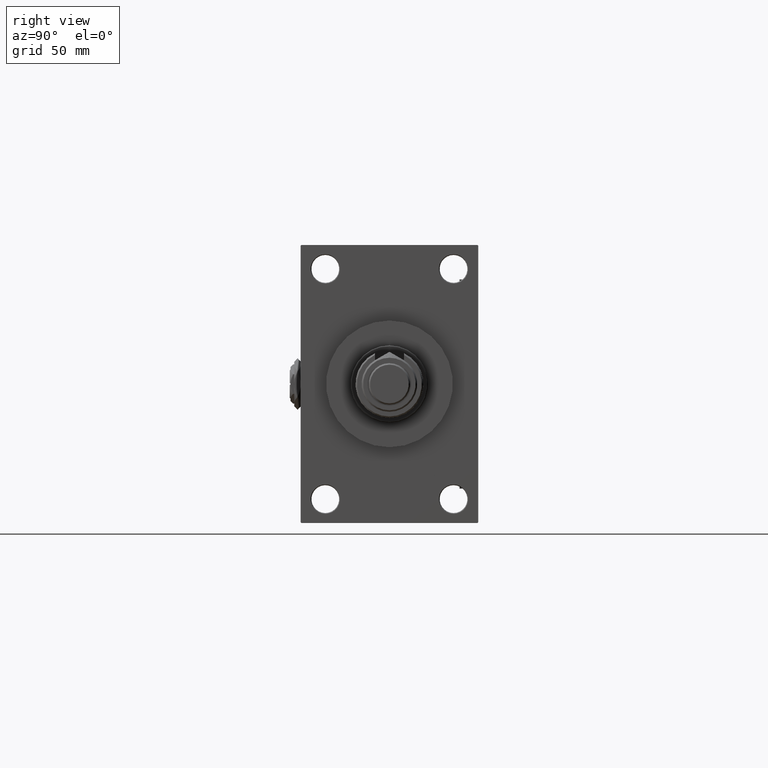
[diagram: clean part render]
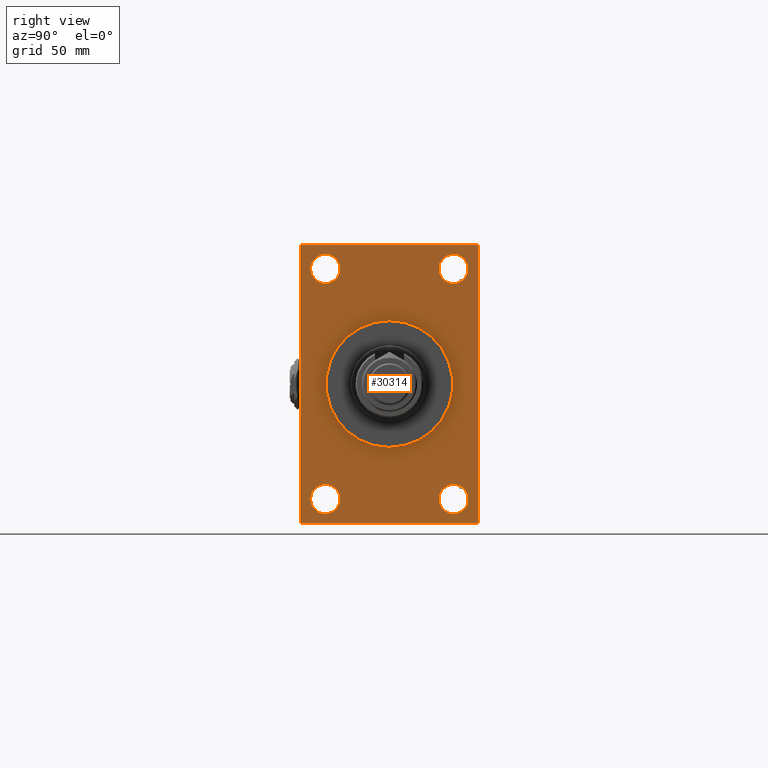
[diagram: same view with one face highlighted and labeled with its STEP entity id]
A machine part, right view. The second image highlights one B-rep face of the part: STEP entity #30314.
In plain terms, the highlighted planar face has unit normal (-1, 0, 0).
Its self-contained STEP definition (entity closure, byte-faithful):
#57 = DIRECTION ( 'NONE',  ( 0.000000000000000000, 0.000000000000000000, -1.000000000000000000 ) ) ;
#67 = DIRECTION ( 'NONE',  ( 0.000000000000000000, 0.000000000000000000, -1.000000000000000000 ) ) ;
#500 = DIRECTION ( 'NONE',  ( 0.000000000000000000, -1.000000000000000000, -1.206764157201257045E-16 ) ) ;
#544 = EDGE_CURVE ( 'NONE', #32998, #51077, #35915, .T. ) ;
#601 = FACE_BOUND ( 'NONE', #46060, .T. ) ;
#1296 = LINE ( 'NONE', #51232, #49151 ) ;
#1650 = VECTOR ( 'NONE', #500, 1000.000000000000000 ) ;
#1802 = VECTOR ( 'NONE', #38207, 1000.000000000000000 ) ;
#1873 = EDGE_CURVE ( 'NONE', #14935, #14039, #38608, .T. ) ;
#1993 = DIRECTION ( 'NONE',  ( 0.000000000000000000, 0.000000000000000000, 1.000000000000000000 ) ) ;
#2077 = EDGE_CURVE ( 'NONE', #46740, #2218, #1296, .T. ) ;
#2218 = VERTEX_POINT ( 'NONE', #18934 ) ;
#2622 = ORIENTED_EDGE ( 'NONE', *, *, #27894, .F. ) ;
#2745 = LINE ( 'NONE', #39973, #5122 ) ;
#2748 = VERTEX_POINT ( 'NONE', #43084 ) ;
#2966 = EDGE_CURVE ( 'NONE', #24859, #37622, #26705, .T. ) ;
#3040 = CARTESIAN_POINT ( 'NONE',  ( 239.0000000000000000, -41.49999999999999289, 65.00000000000000000 ) ) ;
#4587 = LINE ( 'NONE', #21404, #1802 ) ;
#4611 = EDGE_CURVE ( 'NONE', #6654, #2748, #36806, .T. ) ;
#4820 = CARTESIAN_POINT ( 'NONE',  ( 239.0000000000000000, 41.50000000000000711, -64.99999999999998579 ) ) ;
#5122 = VECTOR ( 'NONE', #36109, 1000.000000000000000 ) ;
#5723 = VERTEX_POINT ( 'NONE', #4820 ) ;
#5734 = AXIS2_PLACEMENT_3D ( 'NONE', #33641, #38583, #17381 ) ;
#6320 = EDGE_LOOP ( 'NONE', ( #49970, #53575 ) ) ;
#6654 = VERTEX_POINT ( 'NONE', #21928 ) ;
#6770 = DIRECTION ( 'NONE',  ( -1.000000000000000000, 0.000000000000000000, -0.000000000000000000 ) ) ;
#6883 = DIRECTION ( 'NONE',  ( 0.000000000000000000, 0.000000000000000000, 1.000000000000000000 ) ) ;
#7795 = FACE_BOUND ( 'NONE', #54158, .T. ) ;
#8511 = DIRECTION ( 'NONE',  ( -1.000000000000000000, 0.000000000000000000, -0.000000000000000000 ) ) ;
#8548 = EDGE_CURVE ( 'NONE', #10278, #39652, #4587, .T. ) ;
#8628 = DIRECTION ( 'NONE',  ( -1.000000000000000000, 0.000000000000000000, -0.000000000000000000 ) ) ;
#8683 = AXIS2_PLACEMENT_3D ( 'NONE', #41846, #8511, #25335 ) ;
#8871 = VECTOR ( 'NONE', #22295, 1000.000000000000000 ) ;
#8923 = EDGE_CURVE ( 'NONE', #14039, #14935, #39660, .T. ) ;
#9505 = VERTEX_POINT ( 'NONE', #38479 ) ;
#9609 = CARTESIAN_POINT ( 'NONE',  ( 239.0000000000000000, 41.50000000000000711, 84.00000000000001421 ) ) ;
#10165 = LINE ( 'NONE', #10712, #27472 ) ;
#10278 = VERTEX_POINT ( 'NONE', #25879 ) ;
#10712 = CARTESIAN_POINT ( 'NONE',  ( 239.0000000000000000, 57.00000000000002842, 89.99999999999998579 ) ) ;
#11171 = EDGE_CURVE ( 'NONE', #20734, #9505, #29563, .T. ) ;
#11796 = EDGE_CURVE ( 'NONE', #50867, #26872, #15238, .T. ) ;
#12200 = CARTESIAN_POINT ( 'NONE',  ( 239.0000000000000000, 0.000000000000000000, 0.000000000000000000 ) ) ;
#12755 = FACE_BOUND ( 'NONE', #6320, .T. ) ;
#13026 = DIRECTION ( 'NONE',  ( -0.000000000000000000, 0.000000000000000000, 1.000000000000000000 ) ) ;
#13727 = DIRECTION ( 'NONE',  ( 0.000000000000000000, -1.000000000000000000, -1.206764157201257291E-16 ) ) ;
#14039 = VERTEX_POINT ( 'NONE', #36422 ) ;
#14136 = VECTOR ( 'NONE', #31107, 1000.000000000000000 ) ;
#14141 = ORIENTED_EDGE ( 'NONE', *, *, #4611, .F. ) ;
#14212 = CIRCLE ( 'NONE', #44994, 9.500000000000008882 ) ;
#14278 = CARTESIAN_POINT ( 'NONE',  ( 239.0000000000000000, 57.49999999999997868, -90.00000000000000000 ) ) ;
#14303 = LINE ( 'NONE', #43780, #14136 ) ;
#14305 = DIRECTION ( 'NONE',  ( 0.000000000000000000, -0.7071067811865474617, 0.7071067811865474617 ) ) ;
#14420 = CARTESIAN_POINT ( 'NONE',  ( 239.0000000000000000, 41.50000000000000711, -84.00000000000000000 ) ) ;
#14832 = VERTEX_POINT ( 'NONE', #14420 ) ;
#14842 = ORIENTED_EDGE ( 'NONE', *, *, #48914, .T. ) ;
#14935 = VERTEX_POINT ( 'NONE', #35085 ) ;
#15238 = CIRCLE ( 'NONE', #45167, 9.500000000000008882 ) ;
#15933 = DIRECTION ( 'NONE',  ( 0.000000000000000000, 0.000000000000000000, 1.000000000000000000 ) ) ;
#16336 = FACE_BOUND ( 'NONE', #17629, .T. ) ;
#16905 = FACE_BOUND ( 'NONE', #24619, .T. ) ;
#16910 = EDGE_LOOP ( 'NONE', ( #45369, #44227, #46237, #25644, #28683, #36066, #49586, #54349 ) ) ;
#17381 = DIRECTION ( 'NONE',  ( 0.000000000000000000, 0.000000000000000000, 1.000000000000000000 ) ) ;
#17629 = EDGE_LOOP ( 'NONE', ( #35467, #14842 ) ) ;
#18934 = CARTESIAN_POINT ( 'NONE',  ( 239.0000000000000000, -57.00000000000001421, 89.99999999999997158 ) ) ;
#19359 = DIRECTION ( 'NONE',  ( -1.000000000000000000, 0.000000000000000000, -0.000000000000000000 ) ) ;
#19662 = EDGE_CURVE ( 'NONE', #14832, #5723, #44648, .T. ) ;
#20734 = VERTEX_POINT ( 'NONE', #35400 ) ;
#21404 = CARTESIAN_POINT ( 'NONE',  ( 239.0000000000000000, 57.49999999999997158, 89.99999999999998579 ) ) ;
#21928 = CARTESIAN_POINT ( 'NONE',  ( 239.0000000000000000, 5.021051876504148963E-15, -41.00000000000000000 ) ) ;
#22295 = DIRECTION ( 'NONE',  ( -0.000000000000000000, -0.7071067811865328068, -0.7071067811865622277 ) ) ;
#22838 = LINE ( 'NONE', #39632, #8871 ) ;
#24619 = EDGE_LOOP ( 'NONE', ( #2622, #14141 ) ) ;
#24859 = VERTEX_POINT ( 'NONE', #52137 ) ;
#24902 = EDGE_CURVE ( 'NONE', #24859, #39652, #2745, .T. ) ;
#25207 = AXIS2_PLACEMENT_3D ( 'NONE', #38655, #35050, #34522 ) ;
#25335 = DIRECTION ( 'NONE',  ( 0.000000000000000000, 0.000000000000000000, 1.000000000000000000 ) ) ;
#25644 = ORIENTED_EDGE ( 'NONE', *, *, #24902, .T. ) ;
#25879 = CARTESIAN_POINT ( 'NONE',  ( 239.0000000000000000, 57.49999999999997158, 89.50000000000004263 ) ) ;
#26705 = LINE ( 'NONE', #14278, #1650 ) ;
#26872 = VERTEX_POINT ( 'NONE', #3040 ) ;
#27287 = CIRCLE ( 'NONE', #38683, 41.00000000000000000 ) ;
#27472 = VECTOR ( 'NONE', #14305, 1000.000000000000114 ) ;
#27726 = CIRCLE ( 'NONE', #5734, 9.500000000000008882 ) ;
#27839 = CARTESIAN_POINT ( 'NONE',  ( 239.0000000000000000, -41.49999999999999289, -74.49999999999998579 ) ) ;
#27894 = EDGE_CURVE ( 'NONE', #2748, #6654, #27287, .T. ) ;
#28683 = ORIENTED_EDGE ( 'NONE', *, *, #8548, .F. ) ;
#28728 = CARTESIAN_POINT ( 'NONE',  ( 239.0000000000000000, -57.50000000000002132, 89.99999999999997158 ) ) ;
#29303 = DIRECTION ( 'NONE',  ( 1.000000000000000000, 0.000000000000000000, 0.000000000000000000 ) ) ;
#29353 = CARTESIAN_POINT ( 'NONE',  ( 239.0000000000000000, 0.000000000000000000, 0.000000000000000000 ) ) ;
#29563 = LINE ( 'NONE', #28728, #32683 ) ;
#29875 = EDGE_CURVE ( 'NONE', #9505, #37622, #14303, .T. ) ;
#30314 = ADVANCED_FACE ( 'NONE', ( #601, #12755, #16336, #7795, #16905, #33963 ), #54098, .F. ) ;
#30966 = AXIS2_PLACEMENT_3D ( 'NONE', #50400, #53974, #15933 ) ;
#31107 = DIRECTION ( 'NONE',  ( 0.000000000000000000, 0.7071067811865573427, -0.7071067811865378028 ) ) ;
#31411 = EDGE_CURVE ( 'NONE', #26872, #50867, #14212, .T. ) ;
#32017 = EDGE_CURVE ( 'NONE', #2218, #20734, #22838, .T. ) ;
#32371 = CARTESIAN_POINT ( 'NONE',  ( 239.0000000000000000, -41.49999999999999289, 74.50000000000001421 ) ) ;
#32403 = AXIS2_PLACEMENT_3D ( 'NONE', #46103, #29303, #67 ) ;
#32683 = VECTOR ( 'NONE', #57, 1000.000000000000000 ) ;
#32869 = ORIENTED_EDGE ( 'NONE', *, *, #31411, .T. ) ;
#32998 = VERTEX_POINT ( 'NONE', #46578 ) ;
#33641 = CARTESIAN_POINT ( 'NONE',  ( 239.0000000000000000, 41.50000000000000711, -74.50000000000000000 ) ) ;
#33963 = FACE_OUTER_BOUND ( 'NONE', #16910, .T. ) ;
#34393 = AXIS2_PLACEMENT_3D ( 'NONE', #27839, #44628, #6883 ) ;
#34522 = DIRECTION ( 'NONE',  ( 0.000000000000000000, 0.000000000000000000, 1.000000000000000000 ) ) ;
#35050 = DIRECTION ( 'NONE',  ( -1.000000000000000000, 0.000000000000000000, -0.000000000000000000 ) ) ;
#35085 = CARTESIAN_POINT ( 'NONE',  ( 239.0000000000000000, -41.49999999999999289, -83.99999999999998579 ) ) ;
#35288 = AXIS2_PLACEMENT_3D ( 'NONE', #12200, #8628, #13026 ) ;
#35400 = CARTESIAN_POINT ( 'NONE',  ( 239.0000000000000000, -57.50000000000002132, 89.49999999999994316 ) ) ;
#35467 = ORIENTED_EDGE ( 'NONE', *, *, #19662, .T. ) ;
#35717 = ORIENTED_EDGE ( 'NONE', *, *, #37788, .T. ) ;
#35915 = CIRCLE ( 'NONE', #47353, 9.500000000000008882 ) ;
#36066 = ORIENTED_EDGE ( 'NONE', *, *, #36680, .T. ) ;
#36109 = DIRECTION ( 'NONE',  ( -0.000000000000000000, 0.7071067811865378028, 0.7071067811865573427 ) ) ;
#36249 = DIRECTION ( 'NONE',  ( 0.000000000000000000, 0.000000000000000000, 1.000000000000000000 ) ) ;
#36422 = CARTESIAN_POINT ( 'NONE',  ( 239.0000000000000000, -41.49999999999999289, -64.99999999999997158 ) ) ;
#36680 = EDGE_CURVE ( 'NONE', #10278, #46740, #10165, .T. ) ;
#36806 = CIRCLE ( 'NONE', #32403, 41.00000000000000000 ) ;
#37622 = VERTEX_POINT ( 'NONE', #53420 ) ;
#37788 = EDGE_CURVE ( 'NONE', #51077, #32998, #51205, .T. ) ;
#38207 = DIRECTION ( 'NONE',  ( 0.000000000000000000, 3.854941057726238467E-17, -1.000000000000000000 ) ) ;
#38479 = CARTESIAN_POINT ( 'NONE',  ( 239.0000000000000000, -57.50000000000002132, -89.49999999999997158 ) ) ;
#38487 = CARTESIAN_POINT ( 'NONE',  ( 239.0000000000000000, 57.00000000000002842, 89.99999999999998579 ) ) ;
#38583 = DIRECTION ( 'NONE',  ( -1.000000000000000000, 0.000000000000000000, -0.000000000000000000 ) ) ;
#38608 = CIRCLE ( 'NONE', #8683, 9.500000000000008882 ) ;
#38655 = CARTESIAN_POINT ( 'NONE',  ( 239.0000000000000000, 41.50000000000000711, -74.50000000000000000 ) ) ;
#38683 = AXIS2_PLACEMENT_3D ( 'NONE', #29353, #45881, #45590 ) ;
#39632 = CARTESIAN_POINT ( 'NONE',  ( 239.0000000000000000, -57.50000000000002132, 89.49999999999994316 ) ) ;
#39652 = VERTEX_POINT ( 'NONE', #54529 ) ;
#39660 = CIRCLE ( 'NONE', #34393, 9.500000000000008882 ) ;
#39762 = CARTESIAN_POINT ( 'NONE',  ( 239.0000000000000000, -41.49999999999999289, 74.50000000000001421 ) ) ;
#39964 = ORIENTED_EDGE ( 'NONE', *, *, #544, .T. ) ;
#39973 = CARTESIAN_POINT ( 'NONE',  ( 239.0000000000000000, 57.49999999999997868, -89.49999999999995737 ) ) ;
#40469 = DIRECTION ( 'NONE',  ( 0.000000000000000000, 0.000000000000000000, 1.000000000000000000 ) ) ;
#41846 = CARTESIAN_POINT ( 'NONE',  ( 239.0000000000000000, -41.49999999999999289, -74.49999999999998579 ) ) ;
#43084 = CARTESIAN_POINT ( 'NONE',  ( 239.0000000000000000, 0.000000000000000000, 41.00000000000000000 ) ) ;
#43256 = ORIENTED_EDGE ( 'NONE', *, *, #11796, .T. ) ;
#43780 = CARTESIAN_POINT ( 'NONE',  ( 239.0000000000000000, -57.00000000000002132, -90.00000000000001421 ) ) ;
#44227 = ORIENTED_EDGE ( 'NONE', *, *, #29875, .T. ) ;
#44628 = DIRECTION ( 'NONE',  ( -1.000000000000000000, 0.000000000000000000, -0.000000000000000000 ) ) ;
#44648 = CIRCLE ( 'NONE', #25207, 9.500000000000008882 ) ;
#44870 = CARTESIAN_POINT ( 'NONE',  ( 239.0000000000000000, 41.50000000000000711, 74.50000000000001421 ) ) ;
#44994 = AXIS2_PLACEMENT_3D ( 'NONE', #39762, #19359, #1993 ) ;
#45167 = AXIS2_PLACEMENT_3D ( 'NONE', #32371, #6770, #36249 ) ;
#45369 = ORIENTED_EDGE ( 'NONE', *, *, #11171, .T. ) ;
#45590 = DIRECTION ( 'NONE',  ( 0.000000000000000000, 0.000000000000000000, -1.000000000000000000 ) ) ;
#45881 = DIRECTION ( 'NONE',  ( 1.000000000000000000, 0.000000000000000000, 0.000000000000000000 ) ) ;
#46060 = EDGE_LOOP ( 'NONE', ( #32869, #43256 ) ) ;
#46103 = CARTESIAN_POINT ( 'NONE',  ( 239.0000000000000000, 0.000000000000000000, 0.000000000000000000 ) ) ;
#46237 = ORIENTED_EDGE ( 'NONE', *, *, #2966, .F. ) ;
#46578 = CARTESIAN_POINT ( 'NONE',  ( 239.0000000000000000, 41.50000000000000711, 65.00000000000000000 ) ) ;
#46740 = VERTEX_POINT ( 'NONE', #38487 ) ;
#47353 = AXIS2_PLACEMENT_3D ( 'NONE', #44870, #53422, #40469 ) ;
#48914 = EDGE_CURVE ( 'NONE', #5723, #14832, #27726, .T. ) ;
#49151 = VECTOR ( 'NONE', #13727, 1000.000000000000000 ) ;
#49586 = ORIENTED_EDGE ( 'NONE', *, *, #2077, .T. ) ;
#49970 = ORIENTED_EDGE ( 'NONE', *, *, #1873, .T. ) ;
#50400 = CARTESIAN_POINT ( 'NONE',  ( 239.0000000000000000, 41.50000000000000711, 74.50000000000001421 ) ) ;
#50867 = VERTEX_POINT ( 'NONE', #53727 ) ;
#51077 = VERTEX_POINT ( 'NONE', #9609 ) ;
#51205 = CIRCLE ( 'NONE', #30966, 9.500000000000008882 ) ;
#51232 = CARTESIAN_POINT ( 'NONE',  ( 239.0000000000000000, 57.49999999999997158, 89.99999999999998579 ) ) ;
#52137 = CARTESIAN_POINT ( 'NONE',  ( 239.0000000000000000, 56.99999999999995026, -90.00000000000000000 ) ) ;
#53420 = CARTESIAN_POINT ( 'NONE',  ( 239.0000000000000000, -57.00000000000002132, -90.00000000000001421 ) ) ;
#53422 = DIRECTION ( 'NONE',  ( -1.000000000000000000, 0.000000000000000000, -0.000000000000000000 ) ) ;
#53575 = ORIENTED_EDGE ( 'NONE', *, *, #8923, .T. ) ;
#53727 = CARTESIAN_POINT ( 'NONE',  ( 239.0000000000000000, -41.49999999999999289, 84.00000000000001421 ) ) ;
#53974 = DIRECTION ( 'NONE',  ( -1.000000000000000000, 0.000000000000000000, -0.000000000000000000 ) ) ;
#54098 = PLANE ( 'NONE',  #35288 ) ;
#54158 = EDGE_LOOP ( 'NONE', ( #39964, #35717 ) ) ;
#54349 = ORIENTED_EDGE ( 'NONE', *, *, #32017, .T. ) ;
#54529 = CARTESIAN_POINT ( 'NONE',  ( 239.0000000000000000, 57.49999999999997868, -89.49999999999990052 ) ) ;